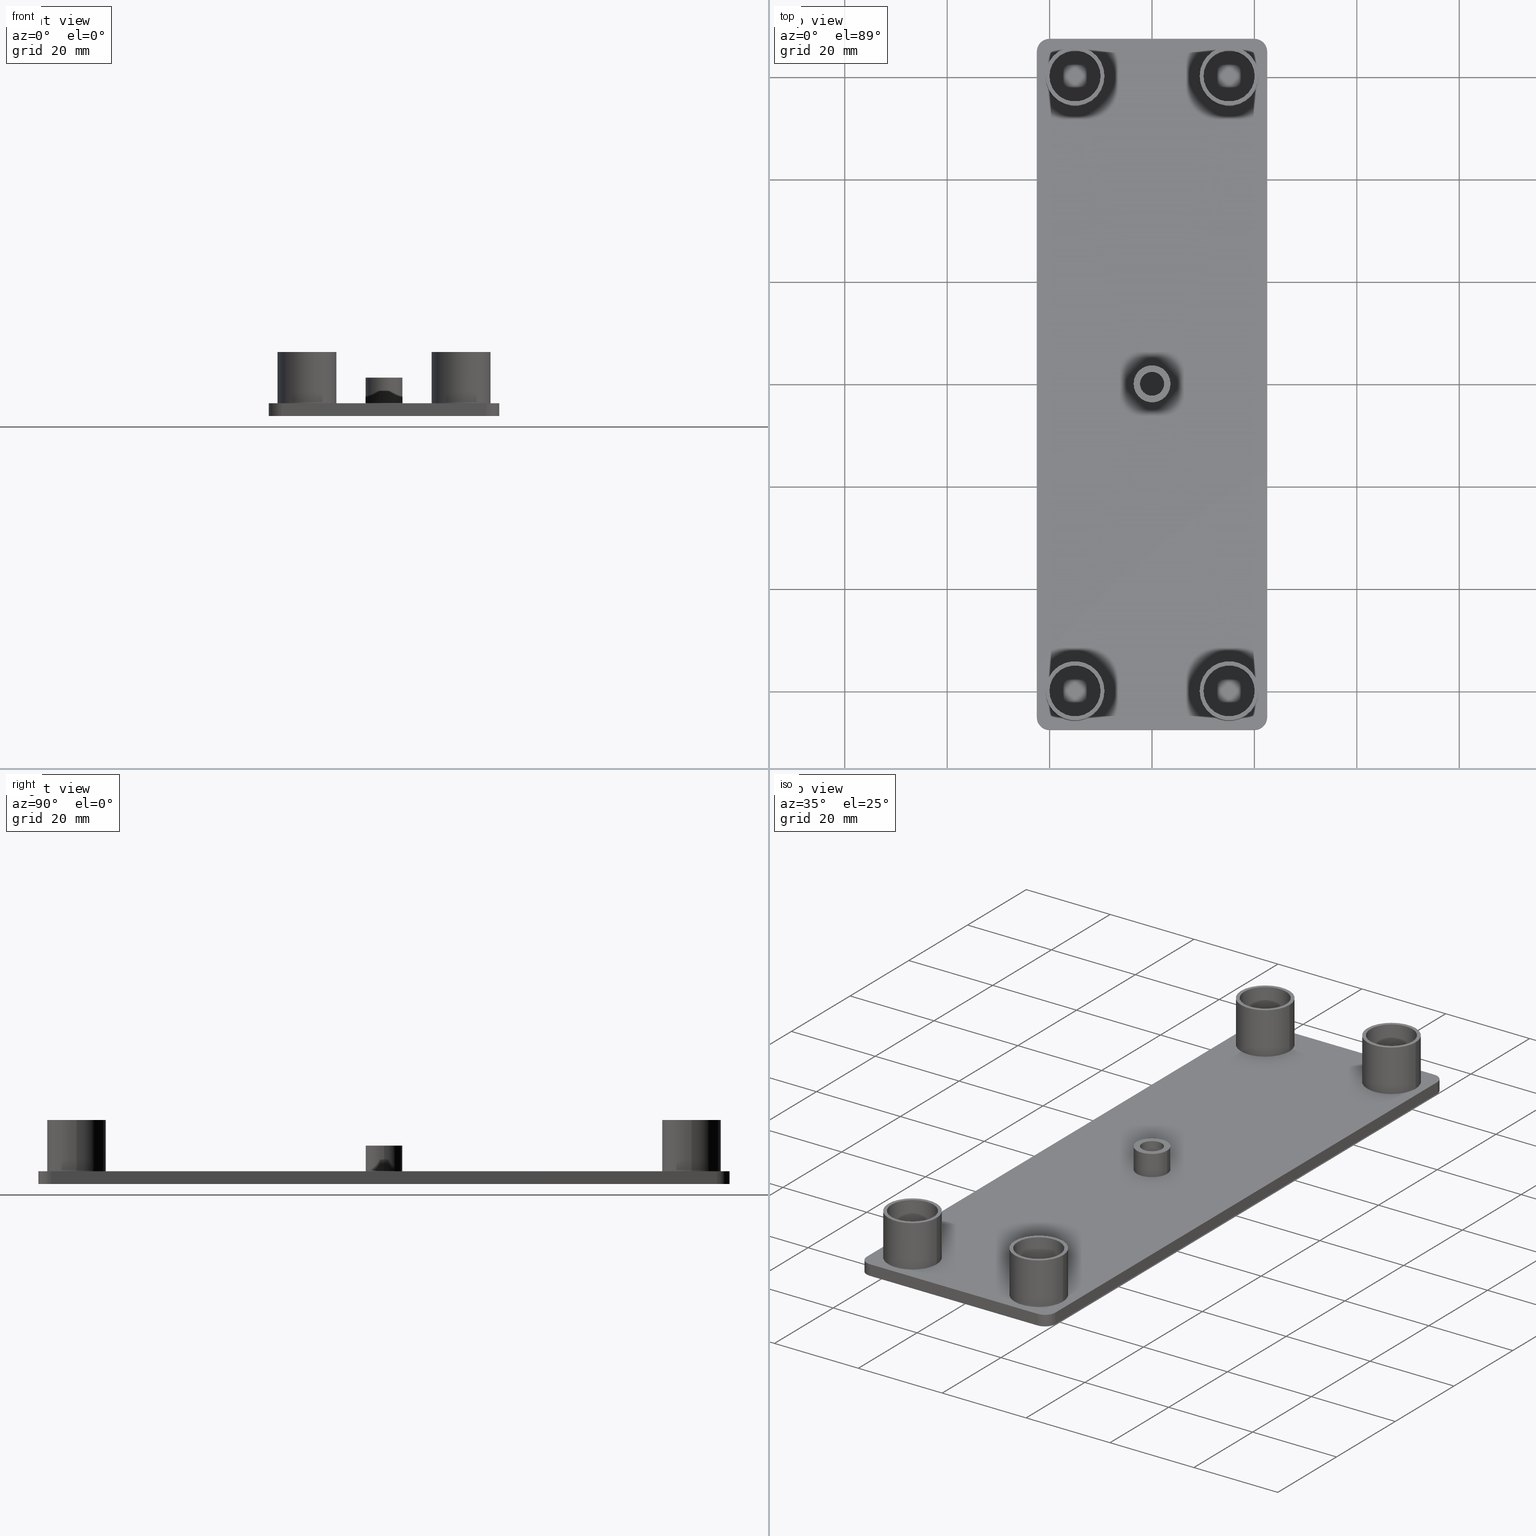
[diagram: canonical four-view strip — front | top / right | iso, engineering-drawing reading convention]
A machine part, canonical four-view strip (front | top / right | iso — engineering-drawing reading convention). The complete STEP part file that produces these views, byte-faithful:
ISO-10303-21;
HEADER;
/****************************************************************
 * Generated by software with PDE/Lib inside                    *
 * PDElib Version v4.4, created Mon 02/23/2004                  *
 * International Technegroup Inc. (www.iti-oh.com)              *
 ****************************************************************/
FILE_DESCRIPTION(('STEP AP203'),'2;1');
FILE_NAME('18.067.00.stp','2011-03-07T08:34:47',(''),(''),'2009.3.110','THINKDESIGN','');
FILE_SCHEMA(('CONFIG_CONTROL_DESIGN'));
ENDSEC;
DATA;
#2=CARTESIAN_POINT('',(-19.999953666585498,-67.499999499730166,0.0));
#3=DIRECTION('',(0.000000025000026,1.000000000000000,0.0));
#4=DIRECTION('',(1.000000000000000,-0.000000025000026,0.0));
#5=AXIS2_PLACEMENT_3D('',#2,#3,#4);
#6=PLANE('',#5);
#7=CARTESIAN_POINT('',(-19.999953666585498,-67.499999499730166,0.0));
#8=VERTEX_POINT('',#7);
#9=CARTESIAN_POINT('',(-19.999953666585498,-67.499999499730166,-2.500000000000000));
#10=VERTEX_POINT('',#9);
#11=CARTESIAN_POINT('',(-19.999953666585498,-67.499999499730166,0.0));
#12=DIRECTION('',(0.0,0.0,-1.0));
#13=VECTOR('',#12,2.500000000000000);
#14=LINE('',#11,#13);
#15=EDGE_CURVE('',#8,#10,#14,.T.);
#16=ORIENTED_EDGE('',*,*,#15,.T.);
#17=CARTESIAN_POINT('',(20.000000333254548,-67.500000499730277,-2.500000000000000));
#18=VERTEX_POINT('',#17);
#19=CARTESIAN_POINT('',(-19.999953666585498,-67.499999499730166,-2.500000000000000));
#20=DIRECTION('',(1.000000000000000,-0.000000025000029,0.0));
#21=VECTOR('',#20,39.999953999840038);
#22=LINE('',#19,#21);
#23=EDGE_CURVE('',#10,#18,#22,.T.);
#24=ORIENTED_EDGE('',*,*,#23,.T.);
#25=CARTESIAN_POINT('',(20.000000333254548,-67.500000499730277,0.0));
#26=VERTEX_POINT('',#25);
#27=CARTESIAN_POINT('',(20.000000333254548,-67.500000499730277,0.0));
#28=DIRECTION('',(0.0,0.0,-1.0));
#29=VECTOR('',#28,2.500000000000000);
#30=LINE('',#27,#29);
#31=EDGE_CURVE('',#26,#18,#30,.T.);
#32=ORIENTED_EDGE('',*,*,#31,.F.);
#33=CARTESIAN_POINT('',(-19.999953666585498,-67.499999499730166,0.0));
#34=DIRECTION('',(1.000000000000000,-0.000000025000029,0.0));
#35=VECTOR('',#34,39.999953999840038);
#36=LINE('',#33,#35);
#37=EDGE_CURVE('',#8,#26,#36,.T.);
#38=ORIENTED_EDGE('',*,*,#37,.F.);
#39=EDGE_LOOP('',(#16,#24,#32,#38));
#40=FACE_OUTER_BOUND('',#39,.T.);
#41=ADVANCED_FACE('',(#40),#6,.F.);
#42=CARTESIAN_POINT('',(20.000000333254548,-65.000000499740281,0.0));
#43=DIRECTION('',(0.0,0.0,1.0));
#44=DIRECTION('',(5.053215E-016,-1.0,0.0));
#45=AXIS2_PLACEMENT_3D('',#42,#43,#44);
#46=CYLINDRICAL_SURFACE('',#45,2.499999999990000);
#47=ORIENTED_EDGE('',*,*,#31,.T.);
#48=CARTESIAN_POINT('',(22.500000333244770,-65.000000499740054,-2.500000000000000));
#49=VERTEX_POINT('',#48);
#50=CARTESIAN_POINT('',(20.000000333254548,-65.000000499740281,-2.500000000000000));
#51=DIRECTION('',(0.0,0.0,1.0));
#52=DIRECTION('',(1.0,0.0,0.0));
#53=AXIS2_PLACEMENT_3D('',#50,#51,#52);
#54=CIRCLE('',#53,2.499999999990000);
#55=EDGE_CURVE('',#18,#49,#54,.T.);
#56=ORIENTED_EDGE('',*,*,#55,.T.);
#57=CARTESIAN_POINT('',(22.500000333244770,-65.000000499740054,0.0));
#58=VERTEX_POINT('',#57);
#59=CARTESIAN_POINT('',(22.500000333244770,-65.000000499740054,0.0));
#60=DIRECTION('',(0.0,0.0,-1.0));
#61=VECTOR('',#60,2.500000000000000);
#62=LINE('',#59,#61);
#63=EDGE_CURVE('',#58,#49,#62,.T.);
#64=ORIENTED_EDGE('',*,*,#63,.F.);
#65=CARTESIAN_POINT('',(20.000000333254548,-65.000000499740281,0.0));
#66=DIRECTION('',(0.0,0.0,1.0));
#67=DIRECTION('',(1.0,0.0,0.0));
#68=AXIS2_PLACEMENT_3D('',#65,#66,#67);
#69=CIRCLE('',#68,2.499999999990000);
#70=EDGE_CURVE('',#26,#58,#69,.T.);
#71=ORIENTED_EDGE('',*,*,#70,.F.);
#72=EDGE_LOOP('',(#47,#56,#64,#71));
#73=FACE_OUTER_BOUND('',#72,.T.);
#74=ADVANCED_FACE('',(#73),#46,.T.);
#75=CARTESIAN_POINT('',(22.500000333244770,-65.000000499740054,0.0));
#76=DIRECTION('',(-1.0,-5.128226E-009,0.0));
#77=DIRECTION('',(-5.128226E-009,1.0,0.0));
#78=AXIS2_PLACEMENT_3D('',#75,#76,#77);
#79=PLANE('',#78);
#80=ORIENTED_EDGE('',*,*,#63,.T.);
#81=CARTESIAN_POINT('',(22.499999666575377,65.000000499740054,-2.500000000000000));
#82=VERTEX_POINT('',#81);
#83=CARTESIAN_POINT('',(22.500000333244696,-65.000000499739969,-2.500000000000000));
#84=DIRECTION('',(-5.128225E-009,1.0,0.0));
#85=VECTOR('',#84,130.000000999480020);
#86=LINE('',#83,#85);
#87=EDGE_CURVE('',#49,#82,#86,.T.);
#88=ORIENTED_EDGE('',*,*,#87,.T.);
#89=CARTESIAN_POINT('',(22.499999666575377,65.000000499740054,0.0));
#90=VERTEX_POINT('',#89);
#91=CARTESIAN_POINT('',(22.499999666575377,65.000000499740054,0.0));
#92=DIRECTION('',(0.0,0.0,-1.0));
#93=VECTOR('',#92,2.500000000000000);
#94=LINE('',#91,#93);
#95=EDGE_CURVE('',#90,#82,#94,.T.);
#96=ORIENTED_EDGE('',*,*,#95,.F.);
#97=CARTESIAN_POINT('',(22.500000333244696,-65.000000499739969,0.0));
#98=DIRECTION('',(-5.128225E-009,1.0,0.0));
#99=VECTOR('',#98,130.000000999480020);
#100=LINE('',#97,#99);
#101=EDGE_CURVE('',#58,#90,#100,.T.);
#102=ORIENTED_EDGE('',*,*,#101,.F.);
#103=EDGE_LOOP('',(#80,#88,#96,#102));
#104=FACE_OUTER_BOUND('',#103,.T.);
#105=ADVANCED_FACE('',(#104),#79,.F.);
#106=CARTESIAN_POINT('',(19.999999666585381,65.000000499740054,0.0));
#107=DIRECTION('',(0.0,0.0,1.0));
#108=DIRECTION('',(1.0,0.0,0.0));
#109=AXIS2_PLACEMENT_3D('',#106,#107,#108);
#110=CYLINDRICAL_SURFACE('',#109,2.499999999990000);
#111=ORIENTED_EDGE('',*,*,#95,.T.);
#112=CARTESIAN_POINT('',(19.999999666585381,67.500000499730049,-2.500000000000000));
#113=VERTEX_POINT('',#112);
#114=CARTESIAN_POINT('',(19.999999666585381,65.000000499740054,-2.500000000000000));
#115=DIRECTION('',(0.0,0.0,1.0));
#116=DIRECTION('',(1.0,0.0,0.0));
#117=AXIS2_PLACEMENT_3D('',#114,#115,#116);
#118=CIRCLE('',#117,2.499999999990000);
#119=EDGE_CURVE('',#82,#113,#118,.T.);
#120=ORIENTED_EDGE('',*,*,#119,.T.);
#121=CARTESIAN_POINT('',(19.999999666585381,67.500000499730049,0.0));
#122=VERTEX_POINT('',#121);
#123=CARTESIAN_POINT('',(19.999999666585381,67.500000499730049,0.0));
#124=DIRECTION('',(0.0,0.0,-1.0));
#125=VECTOR('',#124,2.500000000000000);
#126=LINE('',#123,#125);
#127=EDGE_CURVE('',#122,#113,#126,.T.);
#128=ORIENTED_EDGE('',*,*,#127,.F.);
#129=CARTESIAN_POINT('',(19.999999666585381,65.000000499740054,0.0));
#130=DIRECTION('',(0.0,0.0,1.0));
#131=DIRECTION('',(1.0,0.0,0.0));
#132=AXIS2_PLACEMENT_3D('',#129,#130,#131);
#133=CIRCLE('',#132,2.499999999990000);
#134=EDGE_CURVE('',#90,#122,#133,.T.);
#135=ORIENTED_EDGE('',*,*,#134,.F.);
#136=EDGE_LOOP('',(#111,#120,#128,#135));
#137=FACE_OUTER_BOUND('',#136,.T.);
#138=ADVANCED_FACE('',(#137),#110,.T.);
#139=CARTESIAN_POINT('',(19.999999666585381,67.500000499730049,0.0));
#140=DIRECTION('',(0.0,-1.0,0.0));
#141=DIRECTION('',(-1.0,0.0,0.0));
#142=AXIS2_PLACEMENT_3D('',#139,#140,#141);
#143=PLANE('',#142);
#144=ORIENTED_EDGE('',*,*,#127,.T.);
#145=CARTESIAN_POINT('',(-19.999956333254659,67.500000499730049,-2.500000000000000));
#146=VERTEX_POINT('',#145);
#147=CARTESIAN_POINT('',(19.999999666585381,67.500000499730049,-2.500000000000000));
#148=DIRECTION('',(-1.0,0.0,0.0));
#149=VECTOR('',#148,39.999955999840019);
#150=LINE('',#147,#149);
#151=EDGE_CURVE('',#113,#146,#150,.T.);
#152=ORIENTED_EDGE('',*,*,#151,.T.);
#153=CARTESIAN_POINT('',(-19.999956333254659,67.500000499730049,0.0));
#154=VERTEX_POINT('',#153);
#155=CARTESIAN_POINT('',(-19.999956333254659,67.500000499730049,0.0));
#156=DIRECTION('',(0.0,0.0,-1.0));
#157=VECTOR('',#156,2.500000000000000);
#158=LINE('',#155,#157);
#159=EDGE_CURVE('',#154,#146,#158,.T.);
#160=ORIENTED_EDGE('',*,*,#159,.F.);
#161=CARTESIAN_POINT('',(19.999999666585381,67.500000499730049,0.0));
#162=DIRECTION('',(-1.0,0.0,0.0));
#163=VECTOR('',#162,39.999955999840019);
#164=LINE('',#161,#163);
#165=EDGE_CURVE('',#122,#154,#164,.T.);
#166=ORIENTED_EDGE('',*,*,#165,.F.);
#167=EDGE_LOOP('',(#144,#152,#160,#166));
#168=FACE_OUTER_BOUND('',#167,.T.);
#169=ADVANCED_FACE('',(#168),#143,.F.);
#170=CARTESIAN_POINT('',(-19.999956333254659,65.000000499740054,0.0));
#171=DIRECTION('',(0.0,0.0,1.0));
#172=DIRECTION('',(1.0,0.0,0.0));
#173=AXIS2_PLACEMENT_3D('',#170,#171,#172);
#174=CYLINDRICAL_SURFACE('',#173,2.499999999990000);
#175=ORIENTED_EDGE('',*,*,#159,.T.);
#176=CARTESIAN_POINT('',(-22.499956333244654,65.000000499740054,-2.500000000000000));
#177=VERTEX_POINT('',#176);
#178=CARTESIAN_POINT('',(-19.999956333254659,65.000000499740054,-2.500000000000000));
#179=DIRECTION('',(0.0,0.0,1.0));
#180=DIRECTION('',(1.0,0.0,0.0));
#181=AXIS2_PLACEMENT_3D('',#178,#179,#180);
#182=CIRCLE('',#181,2.499999999990000);
#183=EDGE_CURVE('',#146,#177,#182,.T.);
#184=ORIENTED_EDGE('',*,*,#183,.T.);
#185=CARTESIAN_POINT('',(-22.499956333244654,65.000000499740054,0.0));
#186=VERTEX_POINT('',#185);
#187=CARTESIAN_POINT('',(-22.499956333244654,65.000000499740054,0.0));
#188=DIRECTION('',(0.0,0.0,-1.0));
#189=VECTOR('',#188,2.500000000000000);
#190=LINE('',#187,#189);
#191=EDGE_CURVE('',#186,#177,#190,.T.);
#192=ORIENTED_EDGE('',*,*,#191,.F.);
#193=CARTESIAN_POINT('',(-19.999956333254659,65.000000499740054,0.0));
#194=DIRECTION('',(0.0,0.0,1.0));
#195=DIRECTION('',(1.0,0.0,0.0));
#196=AXIS2_PLACEMENT_3D('',#193,#194,#195);
#197=CIRCLE('',#196,2.499999999990000);
#198=EDGE_CURVE('',#154,#186,#197,.T.);
#199=ORIENTED_EDGE('',*,*,#198,.F.);
#200=EDGE_LOOP('',(#175,#184,#192,#199));
#201=FACE_OUTER_BOUND('',#200,.T.);
#202=ADVANCED_FACE('',(#201),#174,.T.);
#203=CARTESIAN_POINT('',(-22.499956333244654,65.000000499740054,0.0));
#204=DIRECTION('',(1.000000000000000,0.000000020512841,0.0));
#205=DIRECTION('',(0.000000020512841,-1.000000000000000,0.0));
#206=AXIS2_PLACEMENT_3D('',#203,#204,#205);
#207=PLANE('',#206);
#208=ORIENTED_EDGE('',*,*,#191,.T.);
#209=CARTESIAN_POINT('',(-22.499953666575493,-64.999999499740170,-2.500000000000000));
#210=VERTEX_POINT('',#209);
#211=CARTESIAN_POINT('',(-22.499956333244654,65.000000499740054,-2.500000000000000));
#212=DIRECTION('',(0.000000020512841,-1.000000000000000,0.0));
#213=VECTOR('',#212,129.999999999480050);
#214=LINE('',#211,#213);
#215=EDGE_CURVE('',#177,#210,#214,.T.);
#216=ORIENTED_EDGE('',*,*,#215,.T.);
#217=CARTESIAN_POINT('',(-22.499953666575493,-64.999999499740170,0.0));
#218=VERTEX_POINT('',#217);
#219=CARTESIAN_POINT('',(-22.499953666575493,-64.999999499740170,0.0));
#220=DIRECTION('',(0.0,0.0,-1.0));
#221=VECTOR('',#220,2.500000000000000);
#222=LINE('',#219,#221);
#223=EDGE_CURVE('',#218,#210,#222,.T.);
#224=ORIENTED_EDGE('',*,*,#223,.F.);
#225=CARTESIAN_POINT('',(-22.499956333244654,65.000000499740054,0.0));
#226=DIRECTION('',(0.000000020512841,-1.000000000000000,0.0));
#227=VECTOR('',#226,129.999999999480050);
#228=LINE('',#225,#227);
#229=EDGE_CURVE('',#186,#218,#228,.T.);
#230=ORIENTED_EDGE('',*,*,#229,.F.);
#231=EDGE_LOOP('',(#208,#216,#224,#230));
#232=FACE_OUTER_BOUND('',#231,.T.);
#233=ADVANCED_FACE('',(#232),#207,.F.);
#234=CARTESIAN_POINT('',(-19.999953666585498,-64.999999499740170,0.0));
#235=DIRECTION('',(0.0,0.0,1.0));
#236=DIRECTION('',(1.0,0.0,0.0));
#237=AXIS2_PLACEMENT_3D('',#234,#235,#236);
#238=CYLINDRICAL_SURFACE('',#237,2.499999999990000);
#239=ORIENTED_EDGE('',*,*,#223,.T.);
#240=CARTESIAN_POINT('',(-19.999953666585498,-64.999999499740170,-2.500000000000000));
#241=DIRECTION('',(0.0,0.0,1.0));
#242=DIRECTION('',(1.0,0.0,0.0));
#243=AXIS2_PLACEMENT_3D('',#240,#241,#242);
#244=CIRCLE('',#243,2.499999999990000);
#245=EDGE_CURVE('',#210,#10,#244,.T.);
#246=ORIENTED_EDGE('',*,*,#245,.T.);
#247=ORIENTED_EDGE('',*,*,#15,.F.);
#248=CARTESIAN_POINT('',(-19.999953666585498,-64.999999499740170,0.0));
#249=DIRECTION('',(0.0,0.0,1.0));
#250=DIRECTION('',(1.0,0.0,0.0));
#251=AXIS2_PLACEMENT_3D('',#248,#249,#250);
#252=CIRCLE('',#251,2.499999999990000);
#253=EDGE_CURVE('',#218,#8,#252,.T.);
#254=ORIENTED_EDGE('',*,*,#253,.F.);
#255=EDGE_LOOP('',(#239,#246,#247,#254));
#256=FACE_OUTER_BOUND('',#255,.T.);
#257=ADVANCED_FACE('',(#256),#238,.T.);
#258=CARTESIAN_POINT('',(-26.999956730030135,-81.000005329483884,0.0));
#259=DIRECTION('',(0.0,0.0,1.0));
#260=DIRECTION('',(1.0,0.0,0.0));
#261=AXIS2_PLACEMENT_3D('',#258,#259,#260);
#262=PLANE('',#261);
#263=ORIENTED_EDGE('',*,*,#37,.T.);
#264=ORIENTED_EDGE('',*,*,#70,.T.);
#265=ORIENTED_EDGE('',*,*,#101,.T.);
#266=ORIENTED_EDGE('',*,*,#134,.T.);
#267=ORIENTED_EDGE('',*,*,#165,.T.);
#268=ORIENTED_EDGE('',*,*,#198,.T.);
#269=ORIENTED_EDGE('',*,*,#229,.T.);
#270=ORIENTED_EDGE('',*,*,#253,.T.);
#271=EDGE_LOOP('',(#263,#264,#265,#266,#267,#268,#269,#270));
#272=FACE_OUTER_BOUND('',#271,.T.);
#273=CARTESIAN_POINT('',(9.300001333297395,-60.050044499759906,0.0));
#274=VERTEX_POINT('',#273);
#275=CARTESIAN_POINT('',(20.800001333251430,-60.050044499759906,0.0));
#276=VERTEX_POINT('',#275);
#277=CARTESIAN_POINT('',(15.050001333274395,-60.050044499759906,0.0));
#278=DIRECTION('',(0.0,0.0,1.0));
#279=DIRECTION('',(1.0,0.0,0.0));
#280=AXIS2_PLACEMENT_3D('',#277,#278,#279);
#281=CIRCLE('',#280,5.749999999977001);
#282=EDGE_CURVE('',#274,#276,#281,.T.);
#283=ORIENTED_EDGE('',*,*,#282,.F.);
#284=CARTESIAN_POINT('',(15.050001333274395,-60.050044499759906,0.0));
#285=DIRECTION('',(0.0,0.0,1.0));
#286=DIRECTION('',(1.0,0.0,0.0));
#287=AXIS2_PLACEMENT_3D('',#284,#285,#286);
#288=CIRCLE('',#287,5.749999999977001);
#289=EDGE_CURVE('',#276,#274,#288,.T.);
#290=ORIENTED_EDGE('',*,*,#289,.F.);
#291=EDGE_LOOP('',(#283,#290));
#292=FACE_BOUND('',#291,.T.);
#293=CARTESIAN_POINT('',(-20.799998666582233,-60.050044499759906,0.0));
#294=VERTEX_POINT('',#293);
#295=CARTESIAN_POINT('',(-9.299998666628198,-60.050044499759906,0.0));
#296=VERTEX_POINT('',#295);
#297=CARTESIAN_POINT('',(-15.049998666605234,-60.050044499759906,0.0));
#298=DIRECTION('',(0.0,0.0,1.0));
#299=DIRECTION('',(1.0,0.0,0.0));
#300=AXIS2_PLACEMENT_3D('',#297,#298,#299);
#301=CIRCLE('',#300,5.749999999977001);
#302=EDGE_CURVE('',#294,#296,#301,.T.);
#303=ORIENTED_EDGE('',*,*,#302,.F.);
#304=CARTESIAN_POINT('',(-15.049998666605234,-60.050044499759906,0.0));
#305=DIRECTION('',(0.0,0.0,1.0));
#306=DIRECTION('',(1.0,0.0,0.0));
#307=AXIS2_PLACEMENT_3D('',#304,#305,#306);
#308=CIRCLE('',#307,5.749999999977001);
#309=EDGE_CURVE('',#296,#294,#308,.T.);
#310=ORIENTED_EDGE('',*,*,#309,.F.);
#311=EDGE_LOOP('',(#303,#310));
#312=FACE_BOUND('',#311,.T.);
#313=CARTESIAN_POINT('',(9.299999666628118,60.050000499759790,0.0));
#314=VERTEX_POINT('',#313);
#315=CARTESIAN_POINT('',(20.799999666582153,60.050000499759790,0.0));
#316=VERTEX_POINT('',#315);
#317=CARTESIAN_POINT('',(15.049999666605117,60.050000499759790,0.0));
#318=DIRECTION('',(0.0,0.0,1.0));
#319=DIRECTION('',(1.0,0.0,0.0));
#320=AXIS2_PLACEMENT_3D('',#317,#318,#319);
#321=CIRCLE('',#320,5.749999999977001);
#322=EDGE_CURVE('',#314,#316,#321,.T.);
#323=ORIENTED_EDGE('',*,*,#322,.F.);
#324=CARTESIAN_POINT('',(15.049999666605117,60.050000499759790,0.0));
#325=DIRECTION('',(0.0,0.0,1.0));
#326=DIRECTION('',(1.0,0.0,0.0));
#327=AXIS2_PLACEMENT_3D('',#324,#325,#326);
#328=CIRCLE('',#327,5.749999999977001);
#329=EDGE_CURVE('',#316,#314,#328,.T.);
#330=ORIENTED_EDGE('',*,*,#329,.F.);
#331=EDGE_LOOP('',(#323,#330));
#332=FACE_BOUND('',#331,.T.);
#333=CARTESIAN_POINT('',(-20.800000333251511,60.050045499759563,0.0));
#334=VERTEX_POINT('',#333);
#335=CARTESIAN_POINT('',(-9.300000333297476,60.050045499759563,0.0));
#336=VERTEX_POINT('',#335);
#337=CARTESIAN_POINT('',(-15.050000333274511,60.050045499759563,0.0));
#338=DIRECTION('',(0.0,0.0,1.0));
#339=DIRECTION('',(1.0,0.0,0.0));
#340=AXIS2_PLACEMENT_3D('',#337,#338,#339);
#341=CIRCLE('',#340,5.749999999977001);
#342=EDGE_CURVE('',#334,#336,#341,.T.);
#343=ORIENTED_EDGE('',*,*,#342,.F.);
#344=CARTESIAN_POINT('',(-15.050000333274511,60.050045499759563,0.0));
#345=DIRECTION('',(0.0,0.0,1.0));
#346=DIRECTION('',(1.0,0.0,0.0));
#347=AXIS2_PLACEMENT_3D('',#344,#345,#346);
#348=CIRCLE('',#347,5.749999999977001);
#349=EDGE_CURVE('',#336,#334,#348,.T.);
#350=ORIENTED_EDGE('',*,*,#349,.F.);
#351=EDGE_LOOP('',(#343,#350));
#352=FACE_BOUND('',#351,.T.);
#353=CARTESIAN_POINT('',(-3.599999999985601,0.0,0.0));
#354=VERTEX_POINT('',#353);
#355=CARTESIAN_POINT('',(3.599999999985585,0.0,0.0));
#356=VERTEX_POINT('',#355);
#357=CARTESIAN_POINT('',(0.0,0.0,0.0));
#358=DIRECTION('',(0.0,0.0,1.0));
#359=DIRECTION('',(1.0,0.0,0.0));
#360=AXIS2_PLACEMENT_3D('',#357,#358,#359);
#361=CIRCLE('',#360,3.599999999985601);
#362=EDGE_CURVE('',#354,#356,#361,.T.);
#363=ORIENTED_EDGE('',*,*,#362,.F.);
#364=CARTESIAN_POINT('',(0.0,0.0,0.0));
#365=DIRECTION('',(0.0,0.0,1.0));
#366=DIRECTION('',(1.0,0.0,0.0));
#367=AXIS2_PLACEMENT_3D('',#364,#365,#366);
#368=CIRCLE('',#367,3.599999999985601);
#369=EDGE_CURVE('',#356,#354,#368,.T.);
#370=ORIENTED_EDGE('',*,*,#369,.F.);
#371=EDGE_LOOP('',(#363,#370));
#372=FACE_BOUND('',#371,.T.);
#373=ADVANCED_FACE('',(#272,#292,#312,#332,#352,#372),#262,.T.);
#374=CARTESIAN_POINT('',(-26.999956730030135,-81.000005329483884,0.0));
#375=DIRECTION('',(0.0,0.0,1.0));
#376=DIRECTION('',(1.0,0.0,0.0));
#377=AXIS2_PLACEMENT_3D('',#374,#375,#376);
#378=PLANE('',#377);
#379=CARTESIAN_POINT('',(-2.349999999990601,0.0,0.0));
#380=VERTEX_POINT('',#379);
#381=CARTESIAN_POINT('',(2.349999999990587,0.0,0.0));
#382=VERTEX_POINT('',#381);
#383=CARTESIAN_POINT('',(0.0,0.0,0.0));
#384=DIRECTION('',(0.0,0.0,-1.0));
#385=DIRECTION('',(1.0,0.0,0.0));
#386=AXIS2_PLACEMENT_3D('',#383,#384,#385);
#387=CIRCLE('',#386,2.349999999990601);
#388=EDGE_CURVE('',#380,#382,#387,.T.);
#389=ORIENTED_EDGE('',*,*,#388,.F.);
#390=CARTESIAN_POINT('',(0.0,0.0,0.0));
#391=DIRECTION('',(0.0,0.0,-1.0));
#392=DIRECTION('',(1.0,0.0,0.0));
#393=AXIS2_PLACEMENT_3D('',#390,#391,#392);
#394=CIRCLE('',#393,2.349999999990601);
#395=EDGE_CURVE('',#382,#380,#394,.T.);
#396=ORIENTED_EDGE('',*,*,#395,.F.);
#397=EDGE_LOOP('',(#389,#396));
#398=FACE_OUTER_BOUND('',#397,.T.);
#399=ADVANCED_FACE('',(#398),#378,.T.);
#400=CARTESIAN_POINT('',(-26.999956730030135,-81.000005329483884,0.0));
#401=DIRECTION('',(0.0,0.0,1.0));
#402=DIRECTION('',(1.0,0.0,0.0));
#403=AXIS2_PLACEMENT_3D('',#400,#401,#402);
#404=PLANE('',#403);
#405=CARTESIAN_POINT('',(-20.049998666585235,-60.050044499759906,0.0));
#406=VERTEX_POINT('',#405);
#407=CARTESIAN_POINT('',(-10.049998666625243,-60.050044499759906,0.0));
#408=VERTEX_POINT('',#407);
#409=CARTESIAN_POINT('',(-15.049998666605234,-60.050044499759906,0.0));
#410=DIRECTION('',(0.0,0.0,-1.0));
#411=DIRECTION('',(1.0,0.0,0.0));
#412=AXIS2_PLACEMENT_3D('',#409,#410,#411);
#413=CIRCLE('',#412,4.999999999980001);
#414=EDGE_CURVE('',#406,#408,#413,.T.);
#415=ORIENTED_EDGE('',*,*,#414,.F.);
#416=CARTESIAN_POINT('',(-15.049998666605234,-60.050044499759906,0.0));
#417=DIRECTION('',(0.0,0.0,-1.0));
#418=DIRECTION('',(1.0,0.0,0.0));
#419=AXIS2_PLACEMENT_3D('',#416,#417,#418);
#420=CIRCLE('',#419,4.999999999980001);
#421=EDGE_CURVE('',#408,#406,#420,.T.);
#422=ORIENTED_EDGE('',*,*,#421,.F.);
#423=EDGE_LOOP('',(#415,#422));
#424=FACE_OUTER_BOUND('',#423,.T.);
#425=ADVANCED_FACE('',(#424),#404,.T.);
#426=CARTESIAN_POINT('',(-26.999956730030135,-81.000005329483884,0.0));
#427=DIRECTION('',(0.0,0.0,1.0));
#428=DIRECTION('',(1.0,0.0,0.0));
#429=AXIS2_PLACEMENT_3D('',#426,#427,#428);
#430=PLANE('',#429);
#431=CARTESIAN_POINT('',(10.049999666625116,60.050000499759790,0.0));
#432=VERTEX_POINT('',#431);
#433=CARTESIAN_POINT('',(20.049999666585109,60.050000499759790,0.0));
#434=VERTEX_POINT('',#433);
#435=CARTESIAN_POINT('',(15.049999666605117,60.050000499759790,0.0));
#436=DIRECTION('',(0.0,0.0,-1.0));
#437=DIRECTION('',(1.0,0.0,0.0));
#438=AXIS2_PLACEMENT_3D('',#435,#436,#437);
#439=CIRCLE('',#438,4.999999999980001);
#440=EDGE_CURVE('',#432,#434,#439,.T.);
#441=ORIENTED_EDGE('',*,*,#440,.F.);
#442=CARTESIAN_POINT('',(15.049999666605117,60.050000499759790,0.0));
#443=DIRECTION('',(0.0,0.0,-1.0));
#444=DIRECTION('',(1.0,0.0,0.0));
#445=AXIS2_PLACEMENT_3D('',#442,#443,#444);
#446=CIRCLE('',#445,4.999999999980001);
#447=EDGE_CURVE('',#434,#432,#446,.T.);
#448=ORIENTED_EDGE('',*,*,#447,.F.);
#449=EDGE_LOOP('',(#441,#448));
#450=FACE_OUTER_BOUND('',#449,.T.);
#451=ADVANCED_FACE('',(#450),#430,.T.);
#452=CARTESIAN_POINT('',(-26.999956730030135,-81.000005329483884,0.0));
#453=DIRECTION('',(0.0,0.0,1.0));
#454=DIRECTION('',(1.0,0.0,0.0));
#455=AXIS2_PLACEMENT_3D('',#452,#453,#454);
#456=PLANE('',#455);
#457=CARTESIAN_POINT('',(-20.050000333254513,60.050045499759563,0.0));
#458=VERTEX_POINT('',#457);
#459=CARTESIAN_POINT('',(-10.050000333294520,60.050045499759563,0.0));
#460=VERTEX_POINT('',#459);
#461=CARTESIAN_POINT('',(-15.050000333274511,60.050045499759563,0.0));
#462=DIRECTION('',(0.0,0.0,-1.0));
#463=DIRECTION('',(1.0,0.0,0.0));
#464=AXIS2_PLACEMENT_3D('',#461,#462,#463);
#465=CIRCLE('',#464,4.999999999980001);
#466=EDGE_CURVE('',#458,#460,#465,.T.);
#467=ORIENTED_EDGE('',*,*,#466,.F.);
#468=CARTESIAN_POINT('',(-15.050000333274511,60.050045499759563,0.0));
#469=DIRECTION('',(0.0,0.0,-1.0));
#470=DIRECTION('',(1.0,0.0,0.0));
#471=AXIS2_PLACEMENT_3D('',#468,#469,#470);
#472=CIRCLE('',#471,4.999999999980001);
#473=EDGE_CURVE('',#460,#458,#472,.T.);
#474=ORIENTED_EDGE('',*,*,#473,.F.);
#475=EDGE_LOOP('',(#467,#474));
#476=FACE_OUTER_BOUND('',#475,.T.);
#477=ADVANCED_FACE('',(#476),#456,.T.);
#478=CARTESIAN_POINT('',(-26.999956730030135,-81.000005329483884,0.0));
#479=DIRECTION('',(0.0,0.0,1.0));
#480=DIRECTION('',(1.0,0.0,0.0));
#481=AXIS2_PLACEMENT_3D('',#478,#479,#480);
#482=PLANE('',#481);
#483=CARTESIAN_POINT('',(10.050001333294393,-60.050044499759906,0.0));
#484=VERTEX_POINT('',#483);
#485=CARTESIAN_POINT('',(20.050001333254386,-60.050044499759906,0.0));
#486=VERTEX_POINT('',#485);
#487=CARTESIAN_POINT('',(15.050001333274395,-60.050044499759906,0.0));
#488=DIRECTION('',(0.0,0.0,-1.0));
#489=DIRECTION('',(1.0,0.0,0.0));
#490=AXIS2_PLACEMENT_3D('',#487,#488,#489);
#491=CIRCLE('',#490,4.999999999980001);
#492=EDGE_CURVE('',#484,#486,#491,.T.);
#493=ORIENTED_EDGE('',*,*,#492,.F.);
#494=CARTESIAN_POINT('',(15.050001333274395,-60.050044499759906,0.0));
#495=DIRECTION('',(0.0,0.0,-1.0));
#496=DIRECTION('',(1.0,0.0,0.0));
#497=AXIS2_PLACEMENT_3D('',#494,#495,#496);
#498=CIRCLE('',#497,4.999999999980001);
#499=EDGE_CURVE('',#486,#484,#498,.T.);
#500=ORIENTED_EDGE('',*,*,#499,.F.);
#501=EDGE_LOOP('',(#493,#500));
#502=FACE_OUTER_BOUND('',#501,.T.);
#503=ADVANCED_FACE('',(#502),#482,.T.);
#504=CARTESIAN_POINT('',(-26.999956730030135,-81.000005329483884,-2.500000000000000));
#505=DIRECTION('',(0.0,0.0,1.0));
#506=DIRECTION('',(1.0,0.0,0.0));
#507=AXIS2_PLACEMENT_3D('',#504,#505,#506);
#508=PLANE('',#507);
#509=ORIENTED_EDGE('',*,*,#245,.F.);
#510=ORIENTED_EDGE('',*,*,#215,.F.);
#511=ORIENTED_EDGE('',*,*,#183,.F.);
#512=ORIENTED_EDGE('',*,*,#151,.F.);
#513=ORIENTED_EDGE('',*,*,#119,.F.);
#514=ORIENTED_EDGE('',*,*,#87,.F.);
#515=ORIENTED_EDGE('',*,*,#55,.F.);
#516=ORIENTED_EDGE('',*,*,#23,.F.);
#517=EDGE_LOOP('',(#509,#510,#511,#512,#513,#514,#515,#516));
#518=FACE_OUTER_BOUND('',#517,.T.);
#519=ADVANCED_FACE('',(#518),#508,.F.);
#520=CARTESIAN_POINT('',(15.050001333274395,-60.050044499759906,0.0));
#521=DIRECTION('',(0.0,0.0,1.0));
#522=DIRECTION('',(1.0,0.0,0.0));
#523=AXIS2_PLACEMENT_3D('',#520,#521,#522);
#524=CYLINDRICAL_SURFACE('',#523,5.749999999977001);
#525=CARTESIAN_POINT('',(9.300001333297395,-60.050044499759906,10.0));
#526=VERTEX_POINT('',#525);
#527=CARTESIAN_POINT('',(20.800001333251430,-60.050044499759906,10.0));
#528=VERTEX_POINT('',#527);
#529=CARTESIAN_POINT('',(15.050001333274395,-60.050044499759906,10.0));
#530=DIRECTION('',(0.0,0.0,1.0));
#531=DIRECTION('',(1.0,0.0,0.0));
#532=AXIS2_PLACEMENT_3D('',#529,#530,#531);
#533=CIRCLE('',#532,5.749999999977001);
#534=EDGE_CURVE('',#526,#528,#533,.T.);
#535=ORIENTED_EDGE('',*,*,#534,.F.);
#536=CARTESIAN_POINT('',(15.050001333274395,-60.050044499759906,10.0));
#537=DIRECTION('',(0.0,0.0,1.0));
#538=DIRECTION('',(1.0,0.0,0.0));
#539=AXIS2_PLACEMENT_3D('',#536,#537,#538);
#540=CIRCLE('',#539,5.749999999977001);
#541=EDGE_CURVE('',#528,#526,#540,.T.);
#542=ORIENTED_EDGE('',*,*,#541,.F.);
#543=CARTESIAN_POINT('',(20.800001333251430,-60.050044499759906,0.0));
#544=DIRECTION('',(0.0,0.0,1.0));
#545=VECTOR('',#544,10.0);
#546=LINE('',#543,#545);
#547=EDGE_CURVE('',#276,#528,#546,.T.);
#548=ORIENTED_EDGE('',*,*,#547,.F.);
#549=ORIENTED_EDGE('',*,*,#289,.T.);
#550=ORIENTED_EDGE('',*,*,#282,.T.);
#551=ORIENTED_EDGE('',*,*,#547,.T.);
#552=EDGE_LOOP('',(#535,#542,#548,#549,#550,#551));
#553=FACE_OUTER_BOUND('',#552,.T.);
#554=ADVANCED_FACE('',(#553),#524,.T.);
#555=CARTESIAN_POINT('',(15.050001333274395,-60.050044499759906,0.0));
#556=DIRECTION('',(0.0,0.0,-1.0));
#557=DIRECTION('',(1.0,-2.449294E-016,0.0));
#558=AXIS2_PLACEMENT_3D('',#555,#556,#557);
#559=CYLINDRICAL_SURFACE('',#558,4.999999999980001);
#560=CARTESIAN_POINT('',(10.050001333294393,-60.050044499759906,10.0));
#561=VERTEX_POINT('',#560);
#562=CARTESIAN_POINT('',(20.050001333254386,-60.050044499759906,10.0));
#563=VERTEX_POINT('',#562);
#564=CARTESIAN_POINT('',(15.050001333274395,-60.050044499759906,10.0));
#565=DIRECTION('',(0.0,0.0,-1.0));
#566=DIRECTION('',(1.0,0.0,0.0));
#567=AXIS2_PLACEMENT_3D('',#564,#565,#566);
#568=CIRCLE('',#567,4.999999999980001);
#569=EDGE_CURVE('',#561,#563,#568,.T.);
#570=ORIENTED_EDGE('',*,*,#569,.F.);
#571=CARTESIAN_POINT('',(15.050001333274395,-60.050044499759906,10.0));
#572=DIRECTION('',(0.0,0.0,-1.0));
#573=DIRECTION('',(1.0,0.0,0.0));
#574=AXIS2_PLACEMENT_3D('',#571,#572,#573);
#575=CIRCLE('',#574,4.999999999980001);
#576=EDGE_CURVE('',#563,#561,#575,.T.);
#577=ORIENTED_EDGE('',*,*,#576,.F.);
#578=CARTESIAN_POINT('',(20.050001333254386,-60.050044499759906,0.0));
#579=DIRECTION('',(0.0,0.0,1.0));
#580=VECTOR('',#579,10.0);
#581=LINE('',#578,#580);
#582=EDGE_CURVE('',#486,#563,#581,.T.);
#583=ORIENTED_EDGE('',*,*,#582,.F.);
#584=ORIENTED_EDGE('',*,*,#499,.T.);
#585=ORIENTED_EDGE('',*,*,#492,.T.);
#586=ORIENTED_EDGE('',*,*,#582,.T.);
#587=EDGE_LOOP('',(#570,#577,#583,#584,#585,#586));
#588=FACE_OUTER_BOUND('',#587,.T.);
#589=ADVANCED_FACE('',(#588),#559,.F.);
#590=CARTESIAN_POINT('',(8.149996608714446,-66.950049224317354,10.0));
#591=DIRECTION('',(0.0,0.0,1.0));
#592=DIRECTION('',(1.0,0.0,0.0));
#593=AXIS2_PLACEMENT_3D('',#590,#591,#592);
#594=PLANE('',#593);
#595=ORIENTED_EDGE('',*,*,#541,.T.);
#596=ORIENTED_EDGE('',*,*,#534,.T.);
#597=EDGE_LOOP('',(#595,#596));
#598=FACE_OUTER_BOUND('',#597,.T.);
#599=ORIENTED_EDGE('',*,*,#576,.T.);
#600=ORIENTED_EDGE('',*,*,#569,.T.);
#601=EDGE_LOOP('',(#599,#600));
#602=FACE_BOUND('',#601,.T.);
#603=ADVANCED_FACE('',(#598,#602),#594,.T.);
#604=CARTESIAN_POINT('',(-15.049998666605234,-60.050044499759906,0.0));
#605=DIRECTION('',(0.0,0.0,1.0));
#606=DIRECTION('',(1.0,0.0,0.0));
#607=AXIS2_PLACEMENT_3D('',#604,#605,#606);
#608=CYLINDRICAL_SURFACE('',#607,5.749999999977001);
#609=CARTESIAN_POINT('',(-20.799998666582233,-60.050044499759906,10.0));
#610=VERTEX_POINT('',#609);
#611=CARTESIAN_POINT('',(-9.299998666628198,-60.050044499759906,10.0));
#612=VERTEX_POINT('',#611);
#613=CARTESIAN_POINT('',(-15.049998666605234,-60.050044499759906,10.0));
#614=DIRECTION('',(0.0,0.0,1.0));
#615=DIRECTION('',(1.0,0.0,0.0));
#616=AXIS2_PLACEMENT_3D('',#613,#614,#615);
#617=CIRCLE('',#616,5.749999999977001);
#618=EDGE_CURVE('',#610,#612,#617,.T.);
#619=ORIENTED_EDGE('',*,*,#618,.F.);
#620=CARTESIAN_POINT('',(-15.049998666605234,-60.050044499759906,10.0));
#621=DIRECTION('',(0.0,0.0,1.0));
#622=DIRECTION('',(1.0,0.0,0.0));
#623=AXIS2_PLACEMENT_3D('',#620,#621,#622);
#624=CIRCLE('',#623,5.749999999977001);
#625=EDGE_CURVE('',#612,#610,#624,.T.);
#626=ORIENTED_EDGE('',*,*,#625,.F.);
#627=CARTESIAN_POINT('',(-9.299998666628198,-60.050044499759906,0.0));
#628=DIRECTION('',(0.0,0.0,1.0));
#629=VECTOR('',#628,10.0);
#630=LINE('',#627,#629);
#631=EDGE_CURVE('',#296,#612,#630,.T.);
#632=ORIENTED_EDGE('',*,*,#631,.F.);
#633=ORIENTED_EDGE('',*,*,#309,.T.);
#634=ORIENTED_EDGE('',*,*,#302,.T.);
#635=ORIENTED_EDGE('',*,*,#631,.T.);
#636=EDGE_LOOP('',(#619,#626,#632,#633,#634,#635));
#637=FACE_OUTER_BOUND('',#636,.T.);
#638=ADVANCED_FACE('',(#637),#608,.T.);
#639=CARTESIAN_POINT('',(-15.049998666605234,-60.050044499759906,0.0));
#640=DIRECTION('',(0.0,0.0,-1.0));
#641=DIRECTION('',(1.0,-2.449294E-016,0.0));
#642=AXIS2_PLACEMENT_3D('',#639,#640,#641);
#643=CYLINDRICAL_SURFACE('',#642,4.999999999980001);
#644=CARTESIAN_POINT('',(-20.049998666585235,-60.050044499759906,10.0));
#645=VERTEX_POINT('',#644);
#646=CARTESIAN_POINT('',(-10.049998666625243,-60.050044499759906,10.0));
#647=VERTEX_POINT('',#646);
#648=CARTESIAN_POINT('',(-15.049998666605234,-60.050044499759906,10.0));
#649=DIRECTION('',(0.0,0.0,-1.0));
#650=DIRECTION('',(1.0,0.0,0.0));
#651=AXIS2_PLACEMENT_3D('',#648,#649,#650);
#652=CIRCLE('',#651,4.999999999980001);
#653=EDGE_CURVE('',#645,#647,#652,.T.);
#654=ORIENTED_EDGE('',*,*,#653,.F.);
#655=CARTESIAN_POINT('',(-15.049998666605234,-60.050044499759906,10.0));
#656=DIRECTION('',(0.0,0.0,-1.0));
#657=DIRECTION('',(1.0,0.0,0.0));
#658=AXIS2_PLACEMENT_3D('',#655,#656,#657);
#659=CIRCLE('',#658,4.999999999980001);
#660=EDGE_CURVE('',#647,#645,#659,.T.);
#661=ORIENTED_EDGE('',*,*,#660,.F.);
#662=CARTESIAN_POINT('',(-10.049998666625243,-60.050044499759906,0.0));
#663=DIRECTION('',(0.0,0.0,1.0));
#664=VECTOR('',#663,10.0);
#665=LINE('',#662,#664);
#666=EDGE_CURVE('',#408,#647,#665,.T.);
#667=ORIENTED_EDGE('',*,*,#666,.F.);
#668=ORIENTED_EDGE('',*,*,#421,.T.);
#669=ORIENTED_EDGE('',*,*,#414,.T.);
#670=ORIENTED_EDGE('',*,*,#666,.T.);
#671=EDGE_LOOP('',(#654,#661,#667,#668,#669,#670));
#672=FACE_OUTER_BOUND('',#671,.T.);
#673=ADVANCED_FACE('',(#672),#643,.F.);
#674=CARTESIAN_POINT('',(-21.950003391165183,-66.950049224317354,10.0));
#675=DIRECTION('',(0.0,0.0,1.0));
#676=DIRECTION('',(1.0,0.0,0.0));
#677=AXIS2_PLACEMENT_3D('',#674,#675,#676);
#678=PLANE('',#677);
#679=ORIENTED_EDGE('',*,*,#625,.T.);
#680=ORIENTED_EDGE('',*,*,#618,.T.);
#681=EDGE_LOOP('',(#679,#680));
#682=FACE_OUTER_BOUND('',#681,.T.);
#683=ORIENTED_EDGE('',*,*,#660,.T.);
#684=ORIENTED_EDGE('',*,*,#653,.T.);
#685=EDGE_LOOP('',(#683,#684));
#686=FACE_BOUND('',#685,.T.);
#687=ADVANCED_FACE('',(#682,#686),#678,.T.);
#688=CARTESIAN_POINT('',(15.049999666605117,60.050000499759790,0.0));
#689=DIRECTION('',(0.0,0.0,1.0));
#690=DIRECTION('',(1.0,0.0,0.0));
#691=AXIS2_PLACEMENT_3D('',#688,#689,#690);
#692=CYLINDRICAL_SURFACE('',#691,5.749999999977001);
#693=CARTESIAN_POINT('',(9.299999666628118,60.050000499759790,10.0));
#694=VERTEX_POINT('',#693);
#695=CARTESIAN_POINT('',(20.799999666582153,60.050000499759790,10.0));
#696=VERTEX_POINT('',#695);
#697=CARTESIAN_POINT('',(15.049999666605117,60.050000499759790,10.0));
#698=DIRECTION('',(0.0,0.0,1.0));
#699=DIRECTION('',(1.0,0.0,0.0));
#700=AXIS2_PLACEMENT_3D('',#697,#698,#699);
#701=CIRCLE('',#700,5.749999999977001);
#702=EDGE_CURVE('',#694,#696,#701,.T.);
#703=ORIENTED_EDGE('',*,*,#702,.F.);
#704=CARTESIAN_POINT('',(15.049999666605117,60.050000499759790,10.0));
#705=DIRECTION('',(0.0,0.0,1.0));
#706=DIRECTION('',(1.0,0.0,0.0));
#707=AXIS2_PLACEMENT_3D('',#704,#705,#706);
#708=CIRCLE('',#707,5.749999999977001);
#709=EDGE_CURVE('',#696,#694,#708,.T.);
#710=ORIENTED_EDGE('',*,*,#709,.F.);
#711=CARTESIAN_POINT('',(20.799999666582153,60.050000499759790,0.0));
#712=DIRECTION('',(0.0,0.0,1.0));
#713=VECTOR('',#712,10.0);
#714=LINE('',#711,#713);
#715=EDGE_CURVE('',#316,#696,#714,.T.);
#716=ORIENTED_EDGE('',*,*,#715,.F.);
#717=ORIENTED_EDGE('',*,*,#329,.T.);
#718=ORIENTED_EDGE('',*,*,#322,.T.);
#719=ORIENTED_EDGE('',*,*,#715,.T.);
#720=EDGE_LOOP('',(#703,#710,#716,#717,#718,#719));
#721=FACE_OUTER_BOUND('',#720,.T.);
#722=ADVANCED_FACE('',(#721),#692,.T.);
#723=CARTESIAN_POINT('',(15.049999666605117,60.050000499759790,0.0));
#724=DIRECTION('',(0.0,0.0,-1.0));
#725=DIRECTION('',(1.0,-2.449294E-016,0.0));
#726=AXIS2_PLACEMENT_3D('',#723,#724,#725);
#727=CYLINDRICAL_SURFACE('',#726,4.999999999980001);
#728=CARTESIAN_POINT('',(10.049999666625116,60.050000499759790,10.0));
#729=VERTEX_POINT('',#728);
#730=CARTESIAN_POINT('',(20.049999666585109,60.050000499759790,10.0));
#731=VERTEX_POINT('',#730);
#732=CARTESIAN_POINT('',(15.049999666605117,60.050000499759790,10.0));
#733=DIRECTION('',(0.0,0.0,-1.0));
#734=DIRECTION('',(1.0,0.0,0.0));
#735=AXIS2_PLACEMENT_3D('',#732,#733,#734);
#736=CIRCLE('',#735,4.999999999980001);
#737=EDGE_CURVE('',#729,#731,#736,.T.);
#738=ORIENTED_EDGE('',*,*,#737,.F.);
#739=CARTESIAN_POINT('',(15.049999666605117,60.050000499759790,10.0));
#740=DIRECTION('',(0.0,0.0,-1.0));
#741=DIRECTION('',(1.0,0.0,0.0));
#742=AXIS2_PLACEMENT_3D('',#739,#740,#741);
#743=CIRCLE('',#742,4.999999999980001);
#744=EDGE_CURVE('',#731,#729,#743,.T.);
#745=ORIENTED_EDGE('',*,*,#744,.F.);
#746=CARTESIAN_POINT('',(20.049999666585109,60.050000499759790,0.0));
#747=DIRECTION('',(0.0,0.0,1.0));
#748=VECTOR('',#747,10.0);
#749=LINE('',#746,#748);
#750=EDGE_CURVE('',#434,#731,#749,.T.);
#751=ORIENTED_EDGE('',*,*,#750,.F.);
#752=ORIENTED_EDGE('',*,*,#447,.T.);
#753=ORIENTED_EDGE('',*,*,#440,.T.);
#754=ORIENTED_EDGE('',*,*,#750,.T.);
#755=EDGE_LOOP('',(#738,#745,#751,#752,#753,#754));
#756=FACE_OUTER_BOUND('',#755,.T.);
#757=ADVANCED_FACE('',(#756),#727,.F.);
#758=CARTESIAN_POINT('',(8.149994942045169,53.149995775228035,10.0));
#759=DIRECTION('',(0.0,0.0,1.0));
#760=DIRECTION('',(1.0,0.0,0.0));
#761=AXIS2_PLACEMENT_3D('',#758,#759,#760);
#762=PLANE('',#761);
#763=ORIENTED_EDGE('',*,*,#709,.T.);
#764=ORIENTED_EDGE('',*,*,#702,.T.);
#765=EDGE_LOOP('',(#763,#764));
#766=FACE_OUTER_BOUND('',#765,.T.);
#767=ORIENTED_EDGE('',*,*,#744,.T.);
#768=ORIENTED_EDGE('',*,*,#737,.T.);
#769=EDGE_LOOP('',(#767,#768));
#770=FACE_BOUND('',#769,.T.);
#771=ADVANCED_FACE('',(#766,#770),#762,.T.);
#772=CARTESIAN_POINT('',(-15.050000333274511,60.050045499759563,0.0));
#773=DIRECTION('',(0.0,0.0,1.0));
#774=DIRECTION('',(1.0,0.0,0.0));
#775=AXIS2_PLACEMENT_3D('',#772,#773,#774);
#776=CYLINDRICAL_SURFACE('',#775,5.749999999977001);
#777=CARTESIAN_POINT('',(-20.800000333251511,60.050045499759563,10.0));
#778=VERTEX_POINT('',#777);
#779=CARTESIAN_POINT('',(-9.300000333297476,60.050045499759563,10.0));
#780=VERTEX_POINT('',#779);
#781=CARTESIAN_POINT('',(-15.050000333274511,60.050045499759563,10.0));
#782=DIRECTION('',(0.0,0.0,1.0));
#783=DIRECTION('',(1.0,0.0,0.0));
#784=AXIS2_PLACEMENT_3D('',#781,#782,#783);
#785=CIRCLE('',#784,5.749999999977001);
#786=EDGE_CURVE('',#778,#780,#785,.T.);
#787=ORIENTED_EDGE('',*,*,#786,.F.);
#788=CARTESIAN_POINT('',(-15.050000333274511,60.050045499759563,10.0));
#789=DIRECTION('',(0.0,0.0,1.0));
#790=DIRECTION('',(1.0,0.0,0.0));
#791=AXIS2_PLACEMENT_3D('',#788,#789,#790);
#792=CIRCLE('',#791,5.749999999977001);
#793=EDGE_CURVE('',#780,#778,#792,.T.);
#794=ORIENTED_EDGE('',*,*,#793,.F.);
#795=CARTESIAN_POINT('',(-9.300000333297476,60.050045499759563,0.0));
#796=DIRECTION('',(0.0,0.0,1.0));
#797=VECTOR('',#796,10.0);
#798=LINE('',#795,#797);
#799=EDGE_CURVE('',#336,#780,#798,.T.);
#800=ORIENTED_EDGE('',*,*,#799,.F.);
#801=ORIENTED_EDGE('',*,*,#349,.T.);
#802=ORIENTED_EDGE('',*,*,#342,.T.);
#803=ORIENTED_EDGE('',*,*,#799,.T.);
#804=EDGE_LOOP('',(#787,#794,#800,#801,#802,#803));
#805=FACE_OUTER_BOUND('',#804,.T.);
#806=ADVANCED_FACE('',(#805),#776,.T.);
#807=CARTESIAN_POINT('',(-15.050000333274511,60.050045499759563,0.0));
#808=DIRECTION('',(0.0,0.0,-1.0));
#809=DIRECTION('',(1.0,-2.449294E-016,0.0));
#810=AXIS2_PLACEMENT_3D('',#807,#808,#809);
#811=CYLINDRICAL_SURFACE('',#810,4.999999999980001);
#812=CARTESIAN_POINT('',(-20.050000333254513,60.050045499759563,10.0));
#813=VERTEX_POINT('',#812);
#814=CARTESIAN_POINT('',(-10.050000333294520,60.050045499759563,10.0));
#815=VERTEX_POINT('',#814);
#816=CARTESIAN_POINT('',(-15.050000333274511,60.050045499759563,10.0));
#817=DIRECTION('',(0.0,0.0,-1.0));
#818=DIRECTION('',(1.0,0.0,0.0));
#819=AXIS2_PLACEMENT_3D('',#816,#817,#818);
#820=CIRCLE('',#819,4.999999999980001);
#821=EDGE_CURVE('',#813,#815,#820,.T.);
#822=ORIENTED_EDGE('',*,*,#821,.F.);
#823=CARTESIAN_POINT('',(-15.050000333274511,60.050045499759563,10.0));
#824=DIRECTION('',(0.0,0.0,-1.0));
#825=DIRECTION('',(1.0,0.0,0.0));
#826=AXIS2_PLACEMENT_3D('',#823,#824,#825);
#827=CIRCLE('',#826,4.999999999980001);
#828=EDGE_CURVE('',#815,#813,#827,.T.);
#829=ORIENTED_EDGE('',*,*,#828,.F.);
#830=CARTESIAN_POINT('',(-10.050000333294520,60.050045499759563,0.0));
#831=DIRECTION('',(0.0,0.0,1.0));
#832=VECTOR('',#831,10.0);
#833=LINE('',#830,#832);
#834=EDGE_CURVE('',#460,#815,#833,.T.);
#835=ORIENTED_EDGE('',*,*,#834,.F.);
#836=ORIENTED_EDGE('',*,*,#473,.T.);
#837=ORIENTED_EDGE('',*,*,#466,.T.);
#838=ORIENTED_EDGE('',*,*,#834,.T.);
#839=EDGE_LOOP('',(#822,#829,#835,#836,#837,#838));
#840=FACE_OUTER_BOUND('',#839,.T.);
#841=ADVANCED_FACE('',(#840),#811,.F.);
#842=CARTESIAN_POINT('',(-21.950005057834460,53.150040775227808,10.0));
#843=DIRECTION('',(0.0,0.0,1.0));
#844=DIRECTION('',(1.0,0.0,0.0));
#845=AXIS2_PLACEMENT_3D('',#842,#843,#844);
#846=PLANE('',#845);
#847=ORIENTED_EDGE('',*,*,#793,.T.);
#848=ORIENTED_EDGE('',*,*,#786,.T.);
#849=EDGE_LOOP('',(#847,#848));
#850=FACE_OUTER_BOUND('',#849,.T.);
#851=ORIENTED_EDGE('',*,*,#828,.T.);
#852=ORIENTED_EDGE('',*,*,#821,.T.);
#853=EDGE_LOOP('',(#851,#852));
#854=FACE_BOUND('',#853,.T.);
#855=ADVANCED_FACE('',(#850,#854),#846,.T.);
#856=CARTESIAN_POINT('',(0.0,0.0,0.0));
#857=DIRECTION('',(0.0,0.0,1.0));
#858=DIRECTION('',(1.0,0.0,0.0));
#859=AXIS2_PLACEMENT_3D('',#856,#857,#858);
#860=CYLINDRICAL_SURFACE('',#859,3.599999999985601);
#861=CARTESIAN_POINT('',(-3.599999999985601,0.0,5.0));
#862=VERTEX_POINT('',#861);
#863=CARTESIAN_POINT('',(3.599999999985585,0.0,5.0));
#864=VERTEX_POINT('',#863);
#865=CARTESIAN_POINT('',(0.0,0.0,5.0));
#866=DIRECTION('',(0.0,0.0,1.0));
#867=DIRECTION('',(1.0,0.0,0.0));
#868=AXIS2_PLACEMENT_3D('',#865,#866,#867);
#869=CIRCLE('',#868,3.599999999985601);
#870=EDGE_CURVE('',#862,#864,#869,.T.);
#871=ORIENTED_EDGE('',*,*,#870,.F.);
#872=CARTESIAN_POINT('',(0.0,0.0,5.0));
#873=DIRECTION('',(0.0,0.0,1.0));
#874=DIRECTION('',(1.0,0.0,0.0));
#875=AXIS2_PLACEMENT_3D('',#872,#873,#874);
#876=CIRCLE('',#875,3.599999999985601);
#877=EDGE_CURVE('',#864,#862,#876,.T.);
#878=ORIENTED_EDGE('',*,*,#877,.F.);
#879=CARTESIAN_POINT('',(3.599999999985585,0.0,0.0));
#880=DIRECTION('',(0.0,0.0,1.0));
#881=VECTOR('',#880,5.0);
#882=LINE('',#879,#881);
#883=EDGE_CURVE('',#356,#864,#882,.T.);
#884=ORIENTED_EDGE('',*,*,#883,.F.);
#885=ORIENTED_EDGE('',*,*,#369,.T.);
#886=ORIENTED_EDGE('',*,*,#362,.T.);
#887=ORIENTED_EDGE('',*,*,#883,.T.);
#888=EDGE_LOOP('',(#871,#878,#884,#885,#886,#887));
#889=FACE_OUTER_BOUND('',#888,.T.);
#890=ADVANCED_FACE('',(#889),#860,.T.);
#891=CARTESIAN_POINT('',(0.0,0.0,0.0));
#892=DIRECTION('',(0.0,0.0,-1.0));
#893=DIRECTION('',(1.0,-2.449294E-016,0.0));
#894=AXIS2_PLACEMENT_3D('',#891,#892,#893);
#895=CYLINDRICAL_SURFACE('',#894,2.349999999990601);
#896=CARTESIAN_POINT('',(-2.349999999990601,0.0,5.0));
#897=VERTEX_POINT('',#896);
#898=CARTESIAN_POINT('',(2.349999999990587,0.0,5.0));
#899=VERTEX_POINT('',#898);
#900=CARTESIAN_POINT('',(0.0,0.0,5.0));
#901=DIRECTION('',(0.0,0.0,-1.0));
#902=DIRECTION('',(1.0,0.0,0.0));
#903=AXIS2_PLACEMENT_3D('',#900,#901,#902);
#904=CIRCLE('',#903,2.349999999990601);
#905=EDGE_CURVE('',#897,#899,#904,.T.);
#906=ORIENTED_EDGE('',*,*,#905,.F.);
#907=CARTESIAN_POINT('',(0.0,0.0,5.0));
#908=DIRECTION('',(0.0,0.0,-1.0));
#909=DIRECTION('',(1.0,0.0,0.0));
#910=AXIS2_PLACEMENT_3D('',#907,#908,#909);
#911=CIRCLE('',#910,2.349999999990601);
#912=EDGE_CURVE('',#899,#897,#911,.T.);
#913=ORIENTED_EDGE('',*,*,#912,.F.);
#914=CARTESIAN_POINT('',(2.349999999990587,0.0,0.0));
#915=DIRECTION('',(0.0,0.0,1.0));
#916=VECTOR('',#915,5.0);
#917=LINE('',#914,#916);
#918=EDGE_CURVE('',#382,#899,#917,.T.);
#919=ORIENTED_EDGE('',*,*,#918,.F.);
#920=ORIENTED_EDGE('',*,*,#395,.T.);
#921=ORIENTED_EDGE('',*,*,#388,.T.);
#922=ORIENTED_EDGE('',*,*,#918,.T.);
#923=EDGE_LOOP('',(#906,#913,#919,#920,#921,#922));
#924=FACE_OUTER_BOUND('',#923,.T.);
#925=ADVANCED_FACE('',(#924),#895,.F.);
#926=CARTESIAN_POINT('',(-4.320004724404498,-4.320004724404498,5.0));
#927=DIRECTION('',(0.0,0.0,1.0));
#928=DIRECTION('',(1.0,0.0,0.0));
#929=AXIS2_PLACEMENT_3D('',#926,#927,#928);
#930=PLANE('',#929);
#931=ORIENTED_EDGE('',*,*,#877,.T.);
#932=ORIENTED_EDGE('',*,*,#870,.T.);
#933=EDGE_LOOP('',(#931,#932));
#934=FACE_OUTER_BOUND('',#933,.T.);
#935=ORIENTED_EDGE('',*,*,#912,.T.);
#936=ORIENTED_EDGE('',*,*,#905,.T.);
#937=EDGE_LOOP('',(#935,#936));
#938=FACE_BOUND('',#937,.T.);
#939=ADVANCED_FACE('',(#934,#938),#930,.T.);
#940=CLOSED_SHELL('',(#41,#74,#105,#138,#169,#202,#233,#257,#373,#399,#425,#451,#477,#503,#519,#554,#589,#603,#638,#673,#687,#722,#757,#771,#806,#841,#855,#890,#925,#939));
#941=MANIFOLD_SOLID_BREP('',#940);
#947=(NAMED_UNIT(*)PLANE_ANGLE_UNIT()SI_UNIT($,.RADIAN.));
#948=DIMENSIONAL_EXPONENTS(0.0,0.0,0.0,0.0,0.0,0.0,0.0);
#949=PLANE_ANGLE_MEASURE_WITH_UNIT(PLANE_ANGLE_MEASURE(0.017453292500000),#947);
#953=(CONVERSION_BASED_UNIT('DEGREE',#949)NAMED_UNIT(#948)PLANE_ANGLE_UNIT());
#957=(NAMED_UNIT(*)SI_UNIT($,.STERADIAN.)SOLID_ANGLE_UNIT());
#961=(LENGTH_UNIT()NAMED_UNIT(*)SI_UNIT(.MILLI.,.METRE.));
#963=UNCERTAINTY_MEASURE_WITH_UNIT(LENGTH_MEASURE(0.001000000000000),#961,'DISTANCE_ACCURACY_VALUE','');
#965=(GEOMETRIC_REPRESENTATION_CONTEXT(3)GLOBAL_UNCERTAINTY_ASSIGNED_CONTEXT((#963))GLOBAL_UNIT_ASSIGNED_CONTEXT((#953,#957,#961))REPRESENTATION_CONTEXT('thinkdesign','2009.3.110'));
#966=ADVANCED_BREP_SHAPE_REPRESENTATION('',(#941),#965);
#967=APPLICATION_CONTEXT('configuration controlled 3D designs of mechanical parts and assemblies');
#968=APPLICATION_PROTOCOL_DEFINITION('International Standard','config_control_design',1995,#967);
#969=MECHANICAL_CONTEXT('None',#967,'mechanical');
#970=PRODUCT('None','None','None',(#969));
#971=PRODUCT_RELATED_PRODUCT_CATEGORY('detail',$,(#970));
#972=PRODUCT_CATEGORY('part',$);
#973=PRODUCT_CATEGORY_RELATIONSHIP('None','None',#972,#971);
#974=PERSON('PERSON1','None','None',$,$,$);
#975=ORGANIZATION('','None','None');
#976=PERSON_AND_ORGANIZATION(#974,#975);
#977=PERSON_AND_ORGANIZATION_ROLE('design_owner');
#978=CC_DESIGN_PERSON_AND_ORGANIZATION_ASSIGNMENT(#976,#977,(#970));
#979=PRODUCT_DEFINITION_FORMATION_WITH_SPECIFIED_SOURCE('None','None',#970,.NOT_KNOWN.);
#980=PERSON('PERSON2','None','None',$,$,$);
#981=ORGANIZATION('','None','None');
#982=PERSON_AND_ORGANIZATION(#980,#981);
#983=PERSON_AND_ORGANIZATION_ROLE('creator');
#984=CC_DESIGN_PERSON_AND_ORGANIZATION_ASSIGNMENT(#982,#983,(#979));
#985=PERSON('PERSON3','None','None',$,$,$);
#986=ORGANIZATION('','None','None');
#987=PERSON_AND_ORGANIZATION(#985,#986);
#988=PERSON_AND_ORGANIZATION_ROLE('part_supplier');
#989=CC_DESIGN_PERSON_AND_ORGANIZATION_ASSIGNMENT(#987,#988,(#979));
#990=APPROVAL_STATUS('approved');
#991=APPROVAL(#990,'None');
#992=PERSON('PERSON4','None','None',$,$,$);
#993=ORGANIZATION('','None','None');
#994=PERSON_AND_ORGANIZATION(#992,#993);
#995=APPROVAL_ROLE('None');
#996=APPROVAL_PERSON_ORGANIZATION(#994,#991,#995);
#997=CALENDAR_DATE(2011,7,3);
#998=COORDINATED_UNIVERSAL_TIME_OFFSET(0,0,.AHEAD.);
#999=LOCAL_TIME(8,34,47.0,#998);
#1000=DATE_AND_TIME(#997,#999);
#1001=APPROVAL_DATE_TIME(#1000,#991);
#1002=CC_DESIGN_APPROVAL(#991,(#979));
#1003=SECURITY_CLASSIFICATION_LEVEL('unclassified');
#1004=SECURITY_CLASSIFICATION('None','None',#1003);
#1005=CC_DESIGN_SECURITY_CLASSIFICATION(#1004,(#979));
#1006=APPROVAL_STATUS('approved');
#1007=APPROVAL(#1006,'None');
#1008=PERSON('PERSON5','None','None',$,$,$);
#1009=ORGANIZATION('','None','None');
#1010=PERSON_AND_ORGANIZATION(#1008,#1009);
#1011=APPROVAL_ROLE('None');
#1012=APPROVAL_PERSON_ORGANIZATION(#1010,#1007,#1011);
#1013=CALENDAR_DATE(2011,7,3);
#1014=COORDINATED_UNIVERSAL_TIME_OFFSET(0,0,.AHEAD.);
#1015=LOCAL_TIME(8,34,47.0,#1014);
#1016=DATE_AND_TIME(#1013,#1015);
#1017=APPROVAL_DATE_TIME(#1016,#1007);
#1018=CC_DESIGN_APPROVAL(#1007,(#1004));
#1019=PERSON('PERSON6','None','None',$,$,$);
#1020=ORGANIZATION('','None','None');
#1021=PERSON_AND_ORGANIZATION(#1019,#1020);
#1022=PERSON_AND_ORGANIZATION_ROLE('classification_officer');
#1023=CC_DESIGN_PERSON_AND_ORGANIZATION_ASSIGNMENT(#1021,#1022,(#1004));
#1024=DATE_TIME_ROLE('classification_date');
#1025=CALENDAR_DATE(2011,7,3);
#1026=COORDINATED_UNIVERSAL_TIME_OFFSET(0,0,.AHEAD.);
#1027=LOCAL_TIME(8,34,47.0,#1026);
#1028=DATE_AND_TIME(#1025,#1027);
#1029=CC_DESIGN_DATE_AND_TIME_ASSIGNMENT(#1028,#1024,(#1004));
#1030=DESIGN_CONTEXT('part definition',#967,'design');
#1031=DOCUMENT_TYPE('cad_filename');
#1032=DOCUMENT('None','None','None',#1031);
#1033=PRODUCT_DEFINITION_WITH_ASSOCIATED_DOCUMENTS('None','None',#979,#1030,(#1032));
#1034=PERSON('PERSON7','None','None',$,$,$);
#1035=ORGANIZATION('','None','None');
#1036=PERSON_AND_ORGANIZATION(#1034,#1035);
#1037=PERSON_AND_ORGANIZATION_ROLE('creator');
#1038=CC_DESIGN_PERSON_AND_ORGANIZATION_ASSIGNMENT(#1036,#1037,(#1033));
#1039=DATE_TIME_ROLE('creation_date');
#1040=CALENDAR_DATE(2011,7,3);
#1041=COORDINATED_UNIVERSAL_TIME_OFFSET(0,0,.AHEAD.);
#1042=LOCAL_TIME(8,34,47.0,#1041);
#1043=DATE_AND_TIME(#1040,#1042);
#1044=CC_DESIGN_DATE_AND_TIME_ASSIGNMENT(#1043,#1039,(#1033));
#1045=APPROVAL_STATUS('approved');
#1046=APPROVAL(#1045,'None');
#1047=PERSON('PERSON8','None','None',$,$,$);
#1048=ORGANIZATION('','None','None');
#1049=PERSON_AND_ORGANIZATION(#1047,#1048);
#1050=APPROVAL_ROLE('None');
#1051=APPROVAL_PERSON_ORGANIZATION(#1049,#1046,#1050);
#1052=CALENDAR_DATE(2011,7,3);
#1053=COORDINATED_UNIVERSAL_TIME_OFFSET(0,0,.AHEAD.);
#1054=LOCAL_TIME(8,34,47.0,#1053);
#1055=DATE_AND_TIME(#1052,#1054);
#1056=APPROVAL_DATE_TIME(#1055,#1046);
#1057=CC_DESIGN_APPROVAL(#1046,(#1033));
#1058=PRODUCT_DEFINITION_SHAPE('None','None',#1033);
#1059=SHAPE_DEFINITION_REPRESENTATION(#1058,#966);
#1060=DIMENSIONAL_EXPONENTS(0.0,0.0,0.0,0.0,0.0,0.0,0.0);
#1061=DIMENSIONAL_EXPONENTS(1.0,0.0,0.0,0.0,0.0,0.0,0.0);
ENDSEC;
END-ISO-10303-21;
